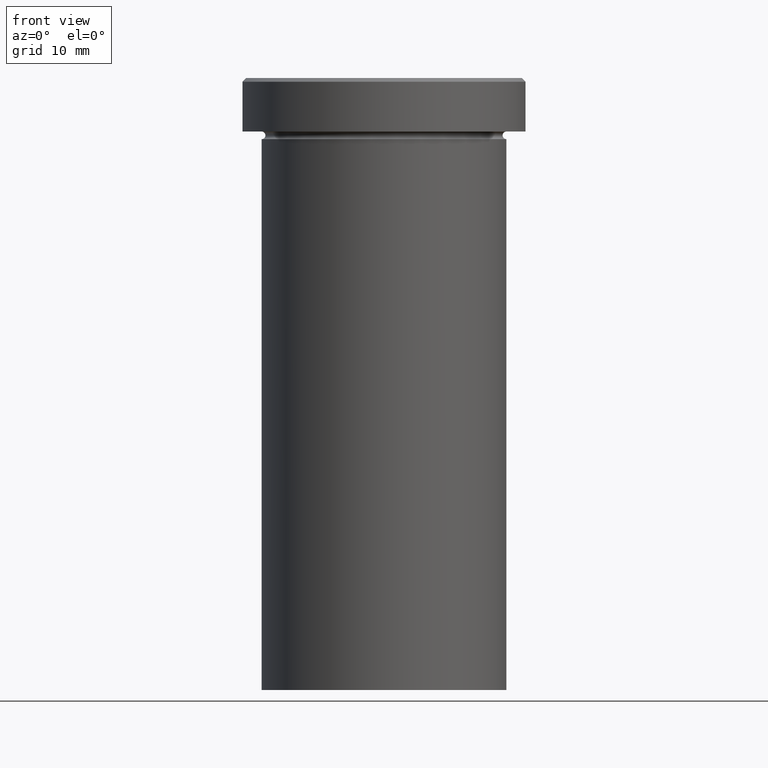
[diagram: clean part render]
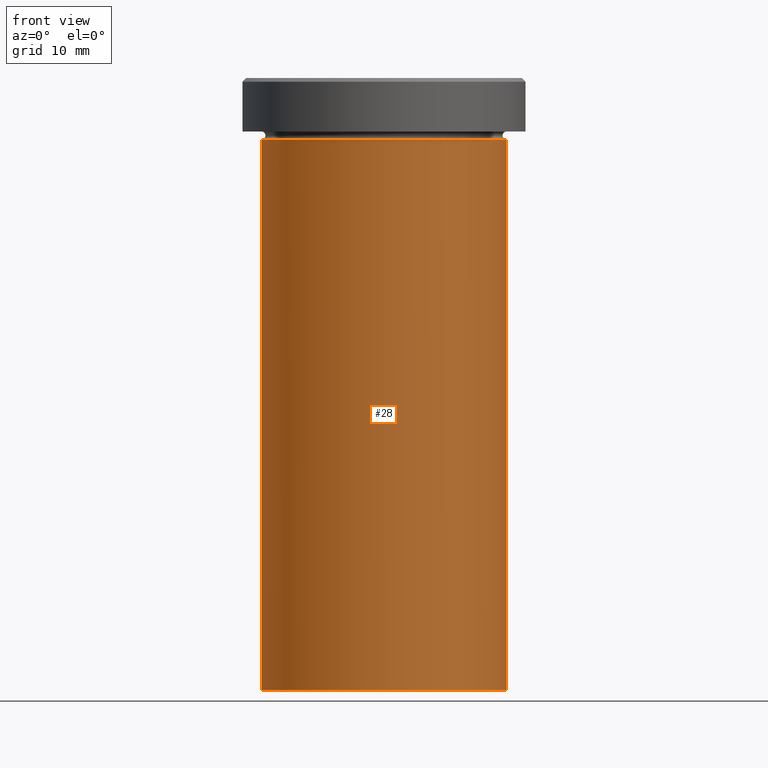
[diagram: same view with one face highlighted and labeled with its STEP entity id]
A machine part, front view. The second image highlights one B-rep face of the part: STEP entity #28.
In plain terms, the highlighted cylindrical surface (partial cylindrical patch) has radius 16 mm, axis along (-0, -0, 1).
Its self-contained STEP definition (entity closure, byte-faithful):
#15 = ORIENTED_EDGE ( 'NONE', *, *, #50, .F. ) ;
#20 = ORIENTED_EDGE ( 'NONE', *, *, #386, .F. ) ;
#24 = DIRECTION ( 'NONE',  ( -0.000000000000000000, -0.000000000000000000, 1.000000000000000000 ) ) ;
#28 = ADVANCED_FACE ( 'NONE', ( #78 ), #405, .T. ) ;
#50 = EDGE_CURVE ( 'NONE', #302, #307, #375, .T. ) ;
#78 = FACE_OUTER_BOUND ( 'NONE', #140, .T. ) ;
#85 = CARTESIAN_POINT ( 'NONE',  ( 0.000000000000000000, 0.000000000000000000, 0.000000000000000000 ) ) ;
#95 = CIRCLE ( 'NONE', #186, 16.00000000000000000 ) ;
#111 = DIRECTION ( 'NONE',  ( -0.000000000000000000, -0.000000000000000000, 1.000000000000000000 ) ) ;
#115 = DIRECTION ( 'NONE',  ( 1.000000000000000000, 0.000000000000000000, 0.000000000000000000 ) ) ;
#123 = DIRECTION ( 'NONE',  ( -0.000000000000000000, -0.000000000000000000, 1.000000000000000000 ) ) ;
#140 = EDGE_LOOP ( 'NONE', ( #15, #202, #301, #20 ) ) ;
#142 = CARTESIAN_POINT ( 'NONE',  ( -16.00000000000000000, 1.959434878635765131E-15, -80.00000000000000000 ) ) ;
#147 = CARTESIAN_POINT ( 'NONE',  ( 0.000000000000000000, 0.000000000000000000, -8.000000000000000000 ) ) ;
#176 = LINE ( 'NONE', #249, #178 ) ;
#178 = VECTOR ( 'NONE', #374, 1000.000000000000000 ) ;
#186 = AXIS2_PLACEMENT_3D ( 'NONE', #147, #312, #339 ) ;
#202 = ORIENTED_EDGE ( 'NONE', *, *, #401, .T. ) ;
#216 = CIRCLE ( 'NONE', #403, 16.00000000000000000 ) ;
#249 = CARTESIAN_POINT ( 'NONE',  ( 16.00000000000000000, 0.000000000000000000, 0.000000000000000000 ) ) ;
#252 = CARTESIAN_POINT ( 'NONE',  ( 16.00000000000000000, 0.000000000000000000, -80.00000000000000000 ) ) ;
#283 = DIRECTION ( 'NONE',  ( 1.000000000000000000, 0.000000000000000000, 0.000000000000000000 ) ) ;
#284 = CARTESIAN_POINT ( 'NONE',  ( -16.00000000000000000, 1.959434878635765131E-15, 0.000000000000000000 ) ) ;
#291 = VECTOR ( 'NONE', #24, 1000.000000000000000 ) ;
#301 = ORIENTED_EDGE ( 'NONE', *, *, #338, .T. ) ;
#302 = VERTEX_POINT ( 'NONE', #142 ) ;
#307 = VERTEX_POINT ( 'NONE', #366 ) ;
#312 = DIRECTION ( 'NONE',  ( -0.000000000000000000, -0.000000000000000000, 1.000000000000000000 ) ) ;
#317 = CARTESIAN_POINT ( 'NONE',  ( 16.00000000000000000, 0.000000000000000000, -8.000000000000000000 ) ) ;
#338 = EDGE_CURVE ( 'NONE', #379, #399, #176, .T. ) ;
#339 = DIRECTION ( 'NONE',  ( 1.000000000000000000, 0.000000000000000000, 0.000000000000000000 ) ) ;
#345 = AXIS2_PLACEMENT_3D ( 'NONE', #85, #123, #115 ) ;
#366 = CARTESIAN_POINT ( 'NONE',  ( -16.00000000000000000, 1.959434878635765131E-15, -8.000000000000000000 ) ) ;
#374 = DIRECTION ( 'NONE',  ( -0.000000000000000000, -0.000000000000000000, 1.000000000000000000 ) ) ;
#375 = LINE ( 'NONE', #284, #291 ) ;
#379 = VERTEX_POINT ( 'NONE', #252 ) ;
#380 = CARTESIAN_POINT ( 'NONE',  ( 0.000000000000000000, 0.000000000000000000, -80.00000000000000000 ) ) ;
#386 = EDGE_CURVE ( 'NONE', #307, #399, #95, .T. ) ;
#399 = VERTEX_POINT ( 'NONE', #317 ) ;
#401 = EDGE_CURVE ( 'NONE', #302, #379, #216, .T. ) ;
#403 = AXIS2_PLACEMENT_3D ( 'NONE', #380, #111, #283 ) ;
#405 = CYLINDRICAL_SURFACE ( 'NONE', #345, 16.00000000000000000 ) ;